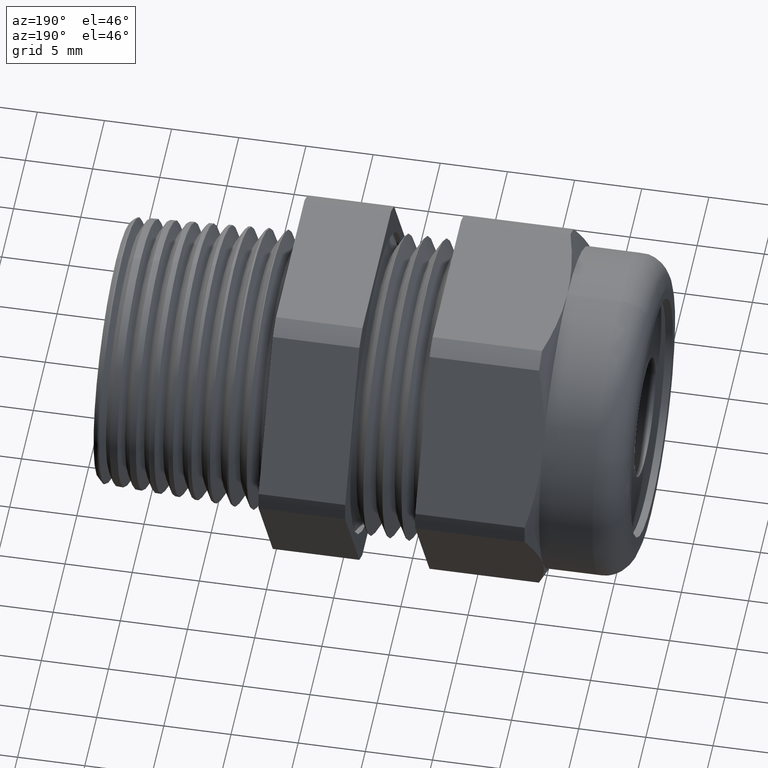
[diagram: clean part render]
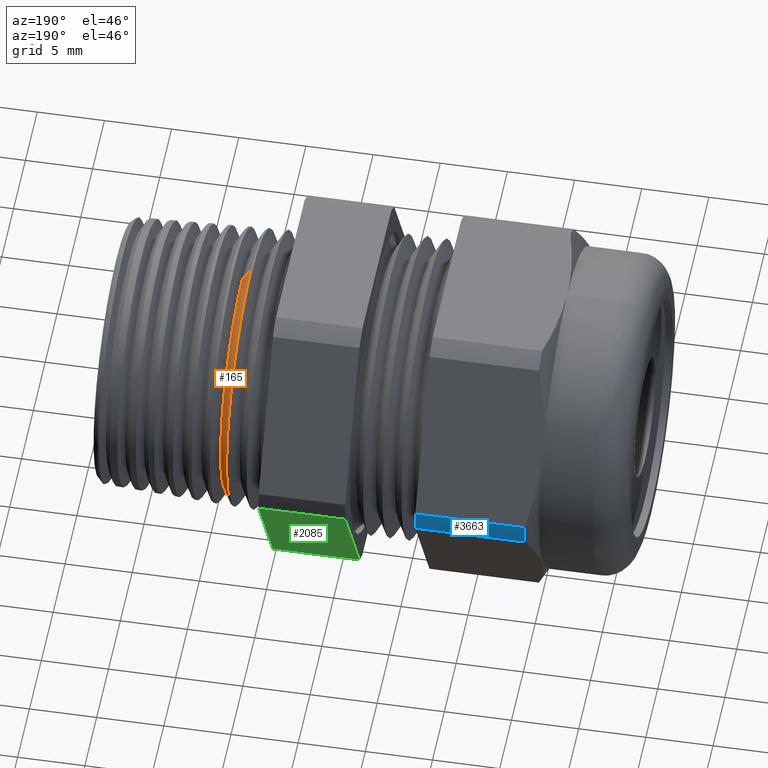
[diagram: same view with three faces highlighted in distinct colors, each labeled with its STEP entity id]
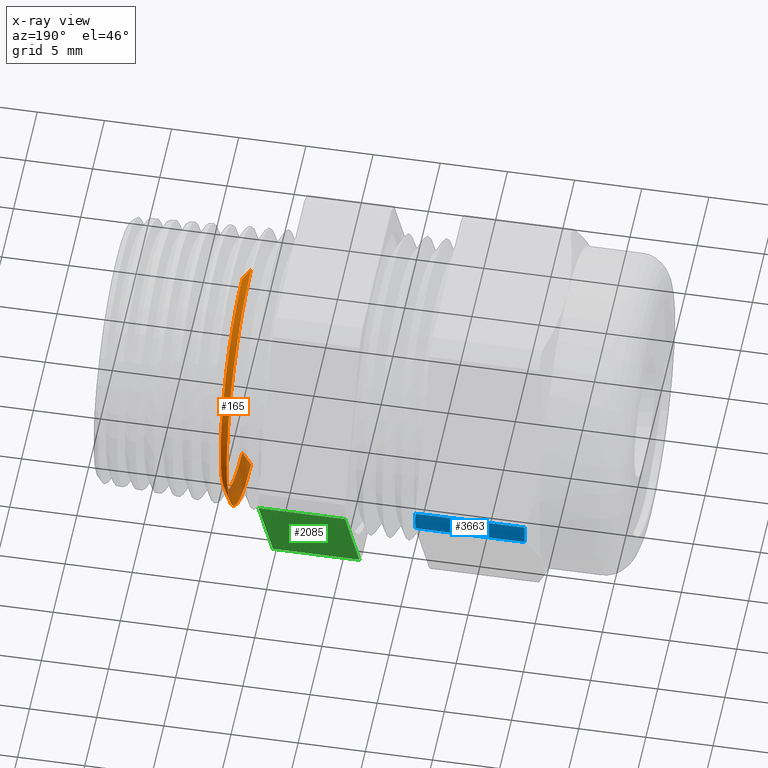
[diagram: x-ray of the same camera — body ghosted, the three highlighted faces saturated]
A machine part, auxiliary view with three faces highlighted in distinct colors.
The next image is the same camera in x-ray (body ghosted, the three faces saturated) — at least one of them is partly hidden behind the body in this view.
Their STEP definitions:

[orange] entity #165 — the highlighted conical surface has half-angle 60 deg.
#137 = EDGE_CURVE ( 'NONE', #188, #140, #2981, .T. ) ;
#139 = ORIENTED_EDGE ( 'NONE', *, *, #137, .F. ) ;
#140 = VERTEX_POINT ( 'NONE', #3035 ) ;
#143 = VERTEX_POINT ( 'NONE', #3032 ) ;
#146 = ORIENTED_EDGE ( 'NONE', *, *, #153, .T. ) ;
#148 = ORIENTED_EDGE ( 'NONE', *, *, #186, .T. ) ;
#150 = ORIENTED_EDGE ( 'NONE', *, *, #154, .T. ) ;
#153 = EDGE_CURVE ( 'NONE', #174, #143, #3020, .T. ) ;
#154 = EDGE_CURVE ( 'NONE', #143, #140, #3015, .T. ) ;
#164 = EDGE_LOOP ( 'NONE', ( #148, #146, #150, #139 ) ) ;
#165 = ADVANCED_FACE ( 'NONE', ( #3055 ), #3054, .T. ) ;
#174 = VERTEX_POINT ( 'NONE', #3092 ) ;
#186 = EDGE_CURVE ( 'NONE', #188, #174, #3127, .T. ) ;
#188 = VERTEX_POINT ( 'NONE', #3116 ) ;
#2980 = CARTESIAN_POINT ( 'NONE',  ( 0.1119999999999997400, 0.0000000000000000000, 0.4099999999999999800 ) ) ;
#2981 = LINE ( 'NONE', #2980, #3043 ) ;
#3011 = DIRECTION ( 'NONE',  ( 0.0000000000000000000, 0.0000000000000000000, 1.000000000000000000 ) ) ;
#3012 = DIRECTION ( 'NONE',  ( 1.000000000000000000, 0.0000000000000000000, 0.0000000000000000000 ) ) ;
#3013 = CARTESIAN_POINT ( 'NONE',  ( 0.1148962656718722600, 0.0000000000000000000, 0.0000000000000000000 ) ) ;
#3014 = AXIS2_PLACEMENT_3D ( 'NONE', #3013, #3012, #3011 ) ;
#3015 = CIRCLE ( 'NONE', #3014, 0.4049835207040990400 ) ;
#3017 = DIRECTION ( 'NONE',  ( -0.4999999999999951200, 1.060575238724910200E-016, -0.8660254037844414800 ) ) ;
#3018 = VECTOR ( 'NONE', #3017, 39.37007874015748100 ) ;
#3019 = CARTESIAN_POINT ( 'NONE',  ( 0.1119999999999997400, 5.021051876504148100E-017, -0.4099999999999999800 ) ) ;
#3020 = LINE ( 'NONE', #3019, #3018 ) ;
#3032 = CARTESIAN_POINT ( 'NONE',  ( 0.1148962656718722600, 4.961004129706623900E-017, -0.4049835207040990400 ) ) ;
#3035 = CARTESIAN_POINT ( 'NONE',  ( 0.1148962656718722600, 0.0000000000000000000, 0.4049835207040990400 ) ) ;
#3042 = DIRECTION ( 'NONE',  ( -0.4999999999999951200, 0.0000000000000000000, 0.8660254037844414800 ) ) ;
#3043 = VECTOR ( 'NONE', #3042, 39.37007874015748100 ) ;
#3050 = DIRECTION ( 'NONE',  ( 0.0000000000000000000, 0.0000000000000000000, 1.000000000000000000 ) ) ;
#3051 = DIRECTION ( 'NONE',  ( -1.000000000000000000, 0.0000000000000000000, 0.0000000000000000000 ) ) ;
#3052 = CARTESIAN_POINT ( 'NONE',  ( 0.1119999999999997400, 0.0000000000000000000, 0.0000000000000000000 ) ) ;
#3053 = AXIS2_PLACEMENT_3D ( 'NONE', #3052, #3051, #3050 ) ;
#3054 = CONICAL_SURFACE ( 'NONE', #3053, 0.4099999999999999800, 1.047197551196603400 ) ;
#3055 = FACE_OUTER_BOUND ( 'NONE', #164, .T. ) ;
#3092 = CARTESIAN_POINT ( 'NONE',  ( 0.1402379998258639900, 4.690849565876275400E-017, -0.3610903495974813200 ) ) ;
#3116 = CARTESIAN_POINT ( 'NONE',  ( 0.1402379998258639900, 0.0000000000000000000, 0.3610903495974813200 ) ) ;
#3123 = DIRECTION ( 'NONE',  ( 0.0000000000000000000, 0.0000000000000000000, 1.000000000000000000 ) ) ;
#3124 = DIRECTION ( 'NONE',  ( -1.000000000000000000, 0.0000000000000000000, 0.0000000000000000000 ) ) ;
#3125 = CARTESIAN_POINT ( 'NONE',  ( 0.1402379998258639900, 0.0000000000000000000, 0.0000000000000000000 ) ) ;
#3126 = AXIS2_PLACEMENT_3D ( 'NONE', #3125, #3124, #3123 ) ;
#3127 = CIRCLE ( 'NONE', #3126, 0.3610903495974813200 ) ;

[blue] entity #3663 — the highlighted cylindrical surface (partial cylindrical patch) has radius 13.3706 mm, axis along (-1, 0, 0).
#1481 = CARTESIAN_POINT ( 'NONE',  ( -0.4591666666666665600, 0.5255614297801198800, 0.02970090112228932300 ) ) ;
#1482 = DIRECTION ( 'NONE',  ( 1.000000000000000000, 0.0000000000000000000, 0.0000000000000000000 ) ) ;
#1483 = VECTOR ( 'NONE', #1482, 39.37007874015748100 ) ;
#1484 = CARTESIAN_POINT ( 'NONE',  ( -2.316272878851058700, 0.5255614297801198800, 0.02970090112228932300 ) ) ;
#1485 = LINE ( 'NONE', #1484, #1483 ) ;
#1509 = CYLINDRICAL_SURFACE ( 'NONE', #1510, 0.5263999999999999800 ) ;
#1510 = AXIS2_PLACEMENT_3D ( 'NONE', #1572, #1571, #1570 ) ;
#1511 = FACE_OUTER_BOUND ( 'NONE', #3664, .T. ) ;
#1512 = DIRECTION ( 'NONE',  ( 0.0000000000000000000, -8.881784197001252300E-015, -1.000000000000000000 ) ) ;
#1513 = DIRECTION ( 'NONE',  ( -1.000000000000000000, 0.0000000000000000000, 0.0000000000000000000 ) ) ;
#1514 = CARTESIAN_POINT ( 'NONE',  ( -0.7799374448177052200, 0.0000000000000000000, 0.0000000000000000000 ) ) ;
#1515 = AXIS2_PLACEMENT_3D ( 'NONE', #1514, #1513, #1512 ) ;
#1516 = CIRCLE ( 'NONE', #1515, 0.5263999999999999800 ) ;
#1521 = CARTESIAN_POINT ( 'NONE',  ( -0.7799374448177052200, 0.5255614297801199900, -0.02970090112228931600 ) ) ;
#1523 = CARTESIAN_POINT ( 'NONE',  ( -0.7799374448177052200, 0.5255614297801198800, 0.02970090112228935100 ) ) ;
#1570 = DIRECTION ( 'NONE',  ( 0.0000000000000000000, 0.0000000000000000000, 1.000000000000000000 ) ) ;
#1571 = DIRECTION ( 'NONE',  ( -1.000000000000000000, 0.0000000000000000000, 0.0000000000000000000 ) ) ;
#1572 = CARTESIAN_POINT ( 'NONE',  ( -0.7238591030180623300, 0.0000000000000000000, 0.0000000000000000000 ) ) ;
#1610 = DIRECTION ( 'NONE',  ( 1.000000000000000000, 0.0000000000000000000, 0.0000000000000000000 ) ) ;
#1611 = VECTOR ( 'NONE', #1610, 39.37007874015748100 ) ;
#1612 = CARTESIAN_POINT ( 'NONE',  ( -2.316272878851058700, 0.5255614297801198800, -0.02970090112228930500 ) ) ;
#1617 = LINE ( 'NONE', #1612, #1611 ) ;
#1625 = CARTESIAN_POINT ( 'NONE',  ( -0.4591666666666666700, 0.5255614297801199900, -0.02970090112228931200 ) ) ;
#1648 = DIRECTION ( 'NONE',  ( 0.0000000000000000000, 0.0000000000000000000, 1.000000000000000000 ) ) ;
#1649 = DIRECTION ( 'NONE',  ( -1.000000000000000000, 0.0000000000000000000, 0.0000000000000000000 ) ) ;
#1650 = CARTESIAN_POINT ( 'NONE',  ( -0.4591666666666666700, 0.0000000000000000000, 0.0000000000000000000 ) ) ;
#1651 = AXIS2_PLACEMENT_3D ( 'NONE', #1650, #1649, #1648 ) ;
#1652 = CIRCLE ( 'NONE', #1651, 0.5263999999999999800 ) ;
#3639 = ORIENTED_EDGE ( 'NONE', *, *, #3643, .T. ) ;
#3640 = ORIENTED_EDGE ( 'NONE', *, *, #3723, .T. ) ;
#3643 = EDGE_CURVE ( 'NONE', #3652, #3645, #1485, .T. ) ;
#3645 = VERTEX_POINT ( 'NONE', #1481 ) ;
#3652 = VERTEX_POINT ( 'NONE', #1523 ) ;
#3656 = VERTEX_POINT ( 'NONE', #1521 ) ;
#3659 = EDGE_CURVE ( 'NONE', #3652, #3656, #1516, .T. ) ;
#3662 = ORIENTED_EDGE ( 'NONE', *, *, #3659, .F. ) ;
#3663 = ADVANCED_FACE ( 'NONE', ( #1511 ), #1509, .T. ) ;
#3664 = EDGE_LOOP ( 'NONE', ( #3662, #3639, #3640, #3707 ) ) ;
#3702 = VERTEX_POINT ( 'NONE', #1625 ) ;
#3706 = EDGE_CURVE ( 'NONE', #3656, #3702, #1617, .T. ) ;
#3707 = ORIENTED_EDGE ( 'NONE', *, *, #3706, .F. ) ;
#3723 = EDGE_CURVE ( 'NONE', #3645, #3702, #1652, .T. ) ;

[green] entity #2085 — the highlighted planar face has unit normal (0, 0.866, -0.5).
#49 = EDGE_LOOP ( 'NONE', ( #2088, #2089, #84, #85 ) ) ;
#84 = ORIENTED_EDGE ( 'NONE', *, *, #2667, .F. ) ;
#85 = ORIENTED_EDGE ( 'NONE', *, *, #3638, .F. ) ;
#1071 = CARTESIAN_POINT ( 'NONE',  ( 0.0000000000000000000, 0.2885024497772519800, -0.4402990988777107400 ) ) ;
#1128 = CARTESIAN_POINT ( 'NONE',  ( 0.0000000000000000000, 0.5255614297801198800, -0.02970090112228930500 ) ) ;
#1129 = DIRECTION ( 'NONE',  ( 0.0000000000000000000, 0.5000000000000001100, 0.8660254037844384900 ) ) ;
#1130 = VECTOR ( 'NONE', #1129, 39.37007874015748900 ) ;
#1131 = CARTESIAN_POINT ( 'NONE',  ( 0.0000000000000000000, 0.2885024497772520300, -0.4402990988777107400 ) ) ;
#1132 = LINE ( 'NONE', #1131, #1130 ) ;
#1486 = DIRECTION ( 'NONE',  ( 1.000000000000000000, 0.0000000000000000000, 0.0000000000000000000 ) ) ;
#1487 = VECTOR ( 'NONE', #1486, 39.37007874015748100 ) ;
#1488 = CARTESIAN_POINT ( 'NONE',  ( -2.316272878851058700, 0.2885024497772519800, -0.4402990988777107400 ) ) ;
#1489 = LINE ( 'NONE', #1488, #1487 ) ;
#1490 = DIRECTION ( 'NONE',  ( 1.000000000000000000, 0.0000000000000000000, 0.0000000000000000000 ) ) ;
#1491 = VECTOR ( 'NONE', #1490, 39.37007874015748100 ) ;
#1492 = CARTESIAN_POINT ( 'NONE',  ( -2.316272878851058700, 0.5255614297801198800, -0.02970090112228930500 ) ) ;
#1493 = LINE ( 'NONE', #1492, #1491 ) ;
#1705 = DIRECTION ( 'NONE',  ( 0.0000000000000000000, 0.5000000000000001100, 0.8660254037844384900 ) ) ;
#1706 = VECTOR ( 'NONE', #1705, 39.37007874015748900 ) ;
#1707 = CARTESIAN_POINT ( 'NONE',  ( -0.2537313432835821000, 0.5170069397786860600, -0.04451771243761268300 ) ) ;
#1708 = LINE ( 'NONE', #1707, #1706 ) ;
#1709 = CARTESIAN_POINT ( 'NONE',  ( -0.2537313432835821600, 0.5255614297801198800, -0.02970090112228930500 ) ) ;
#2058 = VERTEX_POINT ( 'NONE', #3412 ) ;
#2085 = ADVANCED_FACE ( 'NONE', ( #3447 ), #3446, .T. ) ;
#2088 = ORIENTED_EDGE ( 'NONE', *, *, #3757, .T. ) ;
#2089 = ORIENTED_EDGE ( 'NONE', *, *, #3637, .T. ) ;
#2665 = VERTEX_POINT ( 'NONE', #1071 ) ;
#2667 = EDGE_CURVE ( 'NONE', #2665, #2668, #1132, .T. ) ;
#2668 = VERTEX_POINT ( 'NONE', #1128 ) ;
#3412 = CARTESIAN_POINT ( 'NONE',  ( -0.2537313432835821600, 0.2885024497772519800, -0.4402990988777107400 ) ) ;
#3442 = DIRECTION ( 'NONE',  ( 0.0000000000000000000, 0.5000000000000001100, 0.8660254037844384900 ) ) ;
#3443 = DIRECTION ( 'NONE',  ( 0.0000000000000000000, 0.8660254037844386000, -0.5000000000000002200 ) ) ;
#3444 = CARTESIAN_POINT ( 'NONE',  ( -2.316272878851058700, 0.2885024497772520300, -0.4402990988777107400 ) ) ;
#3445 = AXIS2_PLACEMENT_3D ( 'NONE', #3444, #3443, #3442 ) ;
#3446 = PLANE ( 'NONE',  #3445 ) ;
#3447 = FACE_OUTER_BOUND ( 'NONE', #49, .T. ) ;
#3637 = EDGE_CURVE ( 'NONE', #3756, #2668, #1493, .T. ) ;
#3638 = EDGE_CURVE ( 'NONE', #2058, #2665, #1489, .T. ) ;
#3756 = VERTEX_POINT ( 'NONE', #1709 ) ;
#3757 = EDGE_CURVE ( 'NONE', #2058, #3756, #1708, .T. ) ;